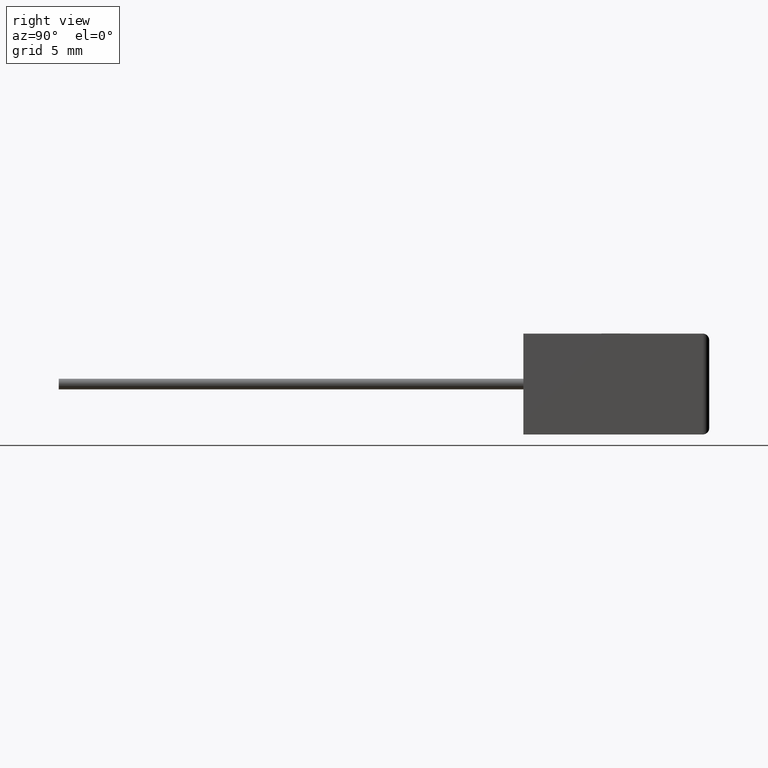
[diagram: clean part render]
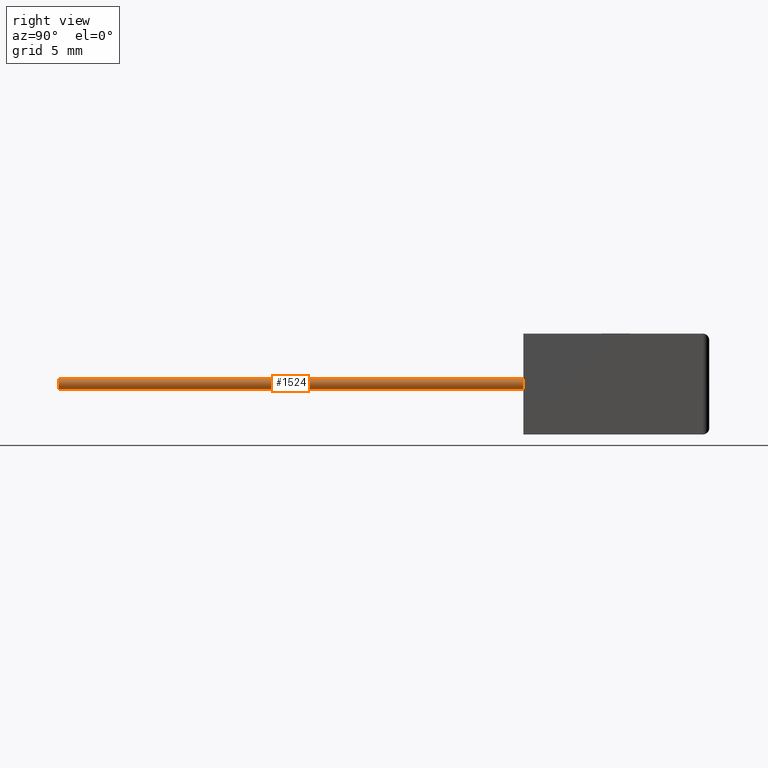
[diagram: same view with one face highlighted and labeled with its STEP entity id]
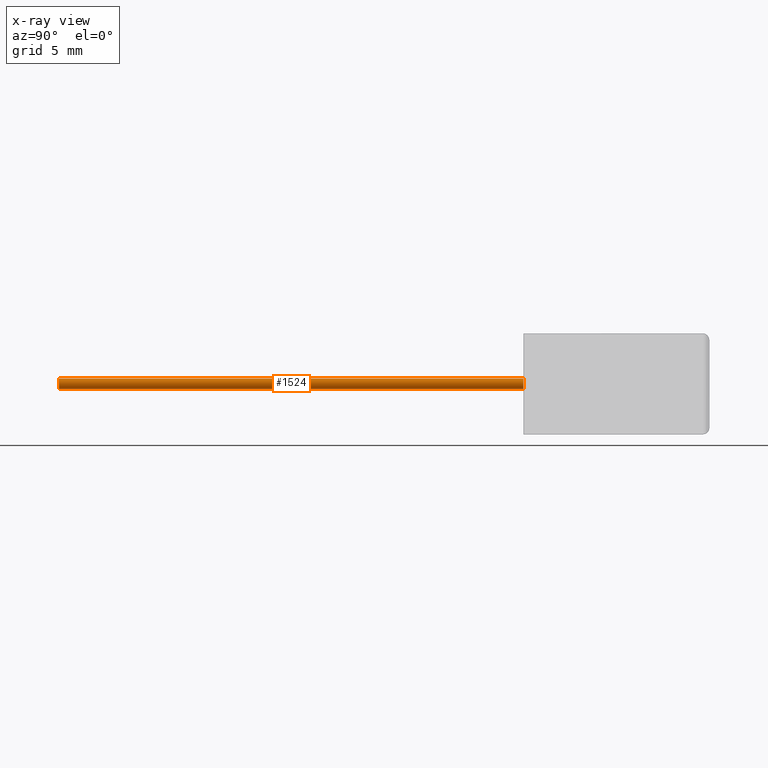
[diagram: x-ray of the same camera — body ghosted, the highlighted face saturated]
A machine part, right view. The second image highlights one B-rep face of the part: STEP entity #1524.
The next image is the same camera in x-ray: the body ghosted, the highlighted face saturated — about 0% of this face is hidden behind the body in this view.
In plain terms, the highlighted cylindrical surface (edge-blend (fillet) strip) has radius 0.4 mm, axis along (-0, 1, -0).
Its self-contained STEP definition (entity closure, byte-faithful):
#58 = CYLINDRICAL_SURFACE ( 'NONE', #1158, 0.4000000000000001900 ) ;
#61 = CARTESIAN_POINT ( 'NONE',  ( 22.15000000000000200, 0.0000000000000000000, 4.200000000000000200 ) ) ;
#90 = CARTESIAN_POINT ( 'NONE',  ( 22.15000000000000200, -35.00000000000000000, 3.800000000000000300 ) ) ;
#107 = CARTESIAN_POINT ( 'NONE',  ( 22.15000000000000200, -35.00000000000000000, 4.200000000000000200 ) ) ;
#134 = DIRECTION ( 'NONE',  ( 0.0000000000000000000, 0.0000000000000000000, 1.000000000000000000 ) ) ;
#190 = VECTOR ( 'NONE', #404, 1000.000000000000000 ) ;
#220 = DIRECTION ( 'NONE',  ( 0.0000000000000000000, 0.0000000000000000000, -1.000000000000000000 ) ) ;
#246 = ORIENTED_EDGE ( 'NONE', *, *, #1863, .F. ) ;
#404 = DIRECTION ( 'NONE',  ( -0.0000000000000000000, 1.000000000000000000, -0.0000000000000000000 ) ) ;
#431 = VECTOR ( 'NONE', #1911, 1000.000000000000000 ) ;
#573 = AXIS2_PLACEMENT_3D ( 'NONE', #90, #2048, #706 ) ;
#647 = VERTEX_POINT ( 'NONE', #705 ) ;
#688 = VERTEX_POINT ( 'NONE', #61 ) ;
#705 = CARTESIAN_POINT ( 'NONE',  ( 22.15000000000000200, -35.00000000000000000, 3.399999999999999900 ) ) ;
#706 = DIRECTION ( 'NONE',  ( 0.0000000000000000000, 0.0000000000000000000, -1.000000000000000000 ) ) ;
#726 = LINE ( 'NONE', #1371, #190 ) ;
#811 = CARTESIAN_POINT ( 'NONE',  ( 22.15000000000000200, -35.00000000000000000, 4.200000000000000200 ) ) ;
#864 = LINE ( 'NONE', #811, #431 ) ;
#921 = EDGE_CURVE ( 'NONE', #647, #965, #726, .T. ) ;
#965 = VERTEX_POINT ( 'NONE', #1597 ) ;
#1038 = DIRECTION ( 'NONE',  ( -0.0000000000000000000, 1.000000000000000000, -0.0000000000000000000 ) ) ;
#1158 = AXIS2_PLACEMENT_3D ( 'NONE', #1875, #1850, #134 ) ;
#1234 = EDGE_CURVE ( 'NONE', #1409, #688, #864, .T. ) ;
#1249 = ORIENTED_EDGE ( 'NONE', *, *, #921, .T. ) ;
#1252 = EDGE_LOOP ( 'NONE', ( #2149, #1249, #246, #1281 ) ) ;
#1281 = ORIENTED_EDGE ( 'NONE', *, *, #1234, .F. ) ;
#1371 = CARTESIAN_POINT ( 'NONE',  ( 22.15000000000000200, -35.00000000000000000, 3.399999999999999900 ) ) ;
#1380 = CARTESIAN_POINT ( 'NONE',  ( 22.15000000000000200, 0.0000000000000000000, 3.800000000000000300 ) ) ;
#1409 = VERTEX_POINT ( 'NONE', #107 ) ;
#1524 = ADVANCED_FACE ( 'NONE', ( #1806 ), #58, .T. ) ;
#1597 = CARTESIAN_POINT ( 'NONE',  ( 22.15000000000000200, 0.0000000000000000000, 3.399999999999999900 ) ) ;
#1732 = CIRCLE ( 'NONE', #573, 0.4000000000000006300 ) ;
#1806 = FACE_OUTER_BOUND ( 'NONE', #1252, .T. ) ;
#1850 = DIRECTION ( 'NONE',  ( -0.0000000000000000000, 1.000000000000000000, -0.0000000000000000000 ) ) ;
#1863 = EDGE_CURVE ( 'NONE', #688, #965, #2181, .T. ) ;
#1875 = CARTESIAN_POINT ( 'NONE',  ( 22.15000000000000200, -35.00000000000000000, 3.800000000000000300 ) ) ;
#1911 = DIRECTION ( 'NONE',  ( -0.0000000000000000000, 1.000000000000000000, -0.0000000000000000000 ) ) ;
#1936 = AXIS2_PLACEMENT_3D ( 'NONE', #1380, #1038, #220 ) ;
#2048 = DIRECTION ( 'NONE',  ( -0.0000000000000000000, 1.000000000000000000, -0.0000000000000000000 ) ) ;
#2149 = ORIENTED_EDGE ( 'NONE', *, *, #2361, .T. ) ;
#2181 = CIRCLE ( 'NONE', #1936, 0.4000000000000006300 ) ;
#2361 = EDGE_CURVE ( 'NONE', #1409, #647, #1732, .T. ) ;